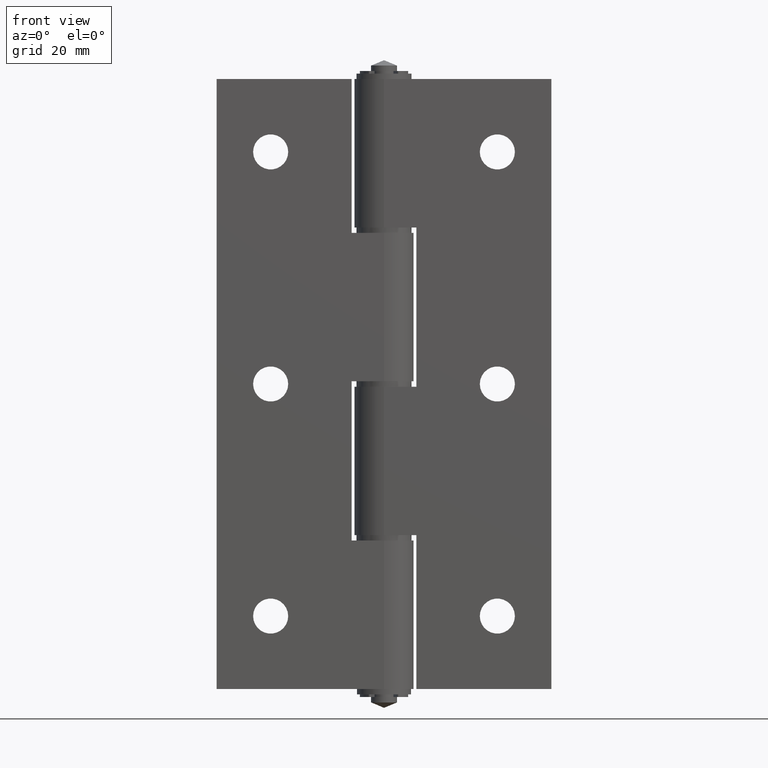
[diagram: clean part render]
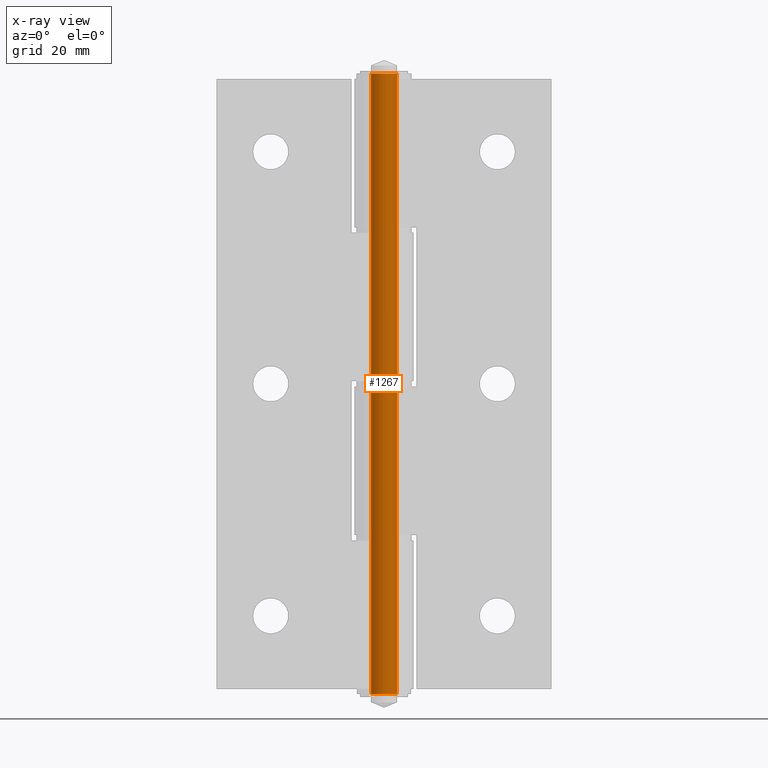
[diagram: x-ray — body ghosted, one internal face saturated and labeled with its STEP entity id]
A machine part, front view, then the same camera in x-ray: the body is ghosted and one INTERNAL B-rep face — a face not visible from any outside direction — is saturated and labeled: STEP entity #1267.
In plain terms, the highlighted cylindrical surface (bore or boss wall) has radius 2.4 mm, axis along (0, -0, 1).
Its self-contained STEP definition (entity closure, byte-faithful):
#284=CYLINDRICAL_SURFACE('',#1383,2.40000000000002);
#332=FACE_BOUND('',#498,.T.);
#392=FACE_OUTER_BOUND('',#497,.T.);
#497=EDGE_LOOP('',(#1030));
#498=EDGE_LOOP('',(#1031));
#593=CIRCLE('',#1364,2.40000000000002);
#602=CIRCLE('',#1382,2.40000000000003);
#683=VERTEX_POINT('',#2016);
#692=VERTEX_POINT('',#2043);
#812=EDGE_CURVE('',#683,#683,#593,.T.);
#821=EDGE_CURVE('',#692,#692,#602,.T.);
#1030=ORIENTED_EDGE('',*,*,#812,.F.);
#1031=ORIENTED_EDGE('',*,*,#821,.T.);
#1267=ADVANCED_FACE('',(#392,#332),#284,.T.);
#1364=AXIS2_PLACEMENT_3D('',#2017,#1604,#1605);
#1382=AXIS2_PLACEMENT_3D('',#2044,#1640,#1641);
#1383=AXIS2_PLACEMENT_3D('',#2045,#1642,#1643);
#1604=DIRECTION('center_axis',(6.1183361668984E-16,0.,1.));
#1605=DIRECTION('ref_axis',(1.,0.,-6.1183361668984E-16));
#1640=DIRECTION('center_axis',(6.1183361668984E-16,0.,1.));
#1641=DIRECTION('ref_axis',(1.,0.,-6.1183361668984E-16));
#1642=DIRECTION('center_axis',(6.1183361668984E-16,0.,1.));
#1643=DIRECTION('ref_axis',(1.,0.,0.));
#2016=CARTESIAN_POINT('',(2.40000000000003,0.,-2.5));
#2017=CARTESIAN_POINT('Origin',(5.75952280709918E-15,0.,-2.5));
#2043=CARTESIAN_POINT('',(2.39999999999996,0.,-117.5));
#2044=CARTESIAN_POINT('Origin',(-6.46013431122325E-14,0.,-117.5));
#2045=CARTESIAN_POINT('Origin',(-4.70111266323996E-14,0.,-88.75));